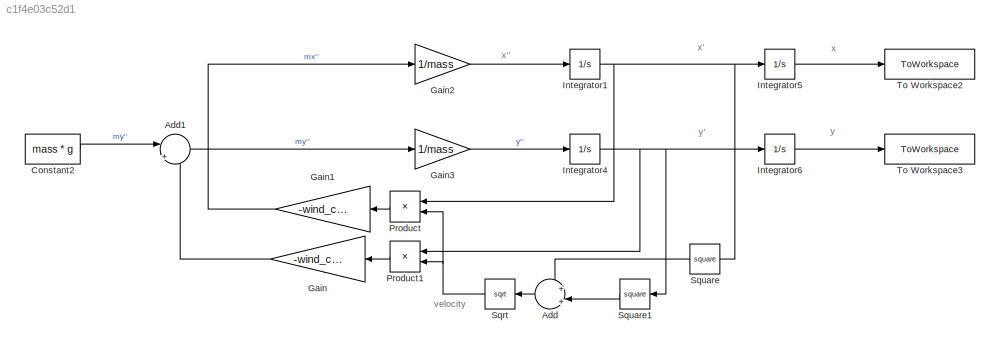
MODEL slx_c1f4e03c52d1
KIND model
CONFIG AbsTol = auto
CONFIG EnableMultiTasking = off
CONFIG FixedStep = auto
CONFIG MaxStep = auto
CONFIG MinStep = auto
CONFIG RelTol = 1e-3
CONFIG SampleTimeConstraint = Unconstrained
CONFIG SolverName = VariableStepAuto
CONFIG StartTime = 0.0
CONFIG StopTime = time_end
BLOCK [Sum] Add
  Inputs = +|+||
  Ports = [2, 1]
BLOCK [Sum] Add1
  Inputs = ||+|+
  Ports = [2, 1]
BLOCK [Constant] Constant2
  Value = mass * g
BLOCK [Gain] Gain
  Gain = -wind_constant
BLOCK [Gain] Gain1
  Gain = -wind_constant
BLOCK [Gain] Gain2
  Gain = 1/mass
BLOCK [Gain] Gain3
  Gain = 1/mass
BLOCK [Integrator] Integrator1
  InitialCondition = v0_x
  Ports = [1, 1]
BLOCK [Integrator] Integrator4
  InitialCondition = v0_y
  Ports = [1, 1]
BLOCK [Integrator] Integrator5
  Ports = [1, 1]
BLOCK [Integrator] Integrator6
  Ports = [1, 1]
BLOCK [Product] Product
  Ports = [2, 1]
BLOCK [Product] Product1
  Ports = [2, 1]
BLOCK [Sqrt] Sqrt
BLOCK [Math] Square
  Operator = square
  Ports = [1, 1]
BLOCK [Math] Square1
  Operator = square
  Ports = [1, 1]
BLOCK [ToWorkspace] To Workspace2
  FixptAsFi = on
  MaxDataPoints = inf
  Ports = [1]
  SampleTime = -1
  SaveFormat = Timeseries
  VariableName = xOut
BLOCK [ToWorkspace] To Workspace3
  FixptAsFi = on
  MaxDataPoints = inf
  Ports = [1]
  SampleTime = -1
  SaveFormat = Timeseries
  VariableName = yOut
ANNOTATION (root): velocity
ANNOTATION (root): x
ANNOTATION (root): x'
ANNOTATION (root): x''
ANNOTATION (root): y
ANNOTATION (root): y'
LINE Add1:1 -> Gain3:1
LINE Add:1 -> Sqrt:1
LINE Constant2:1 -> Add1:1
LINE Gain1:1 -> Gain2:1
LINE Gain2:1 -> Integrator1:1
LINE Gain3:1 -> Integrator4:1
LINE Gain:1 -> Add1:2
NET Integrator1:1 -> Integrator5:1, Product:1, Square:1
NET Integrator4:1 -> Integrator6:1, Product1:1, Square1:1
LINE Integrator5:1 -> To Workspace2:1
LINE Integrator6:1 -> To Workspace3:1
LINE Product1:1 -> Gain:1
LINE Product:1 -> Gain1:1
NET Sqrt:1 -> Product1:2, Product:2
LINE Square1:1 -> Add:2
LINE Square:1 -> Add:1
note: NET lines group one-source signal fan-out (src -> all destinations, sorted); 1:1 wires keep LINE
